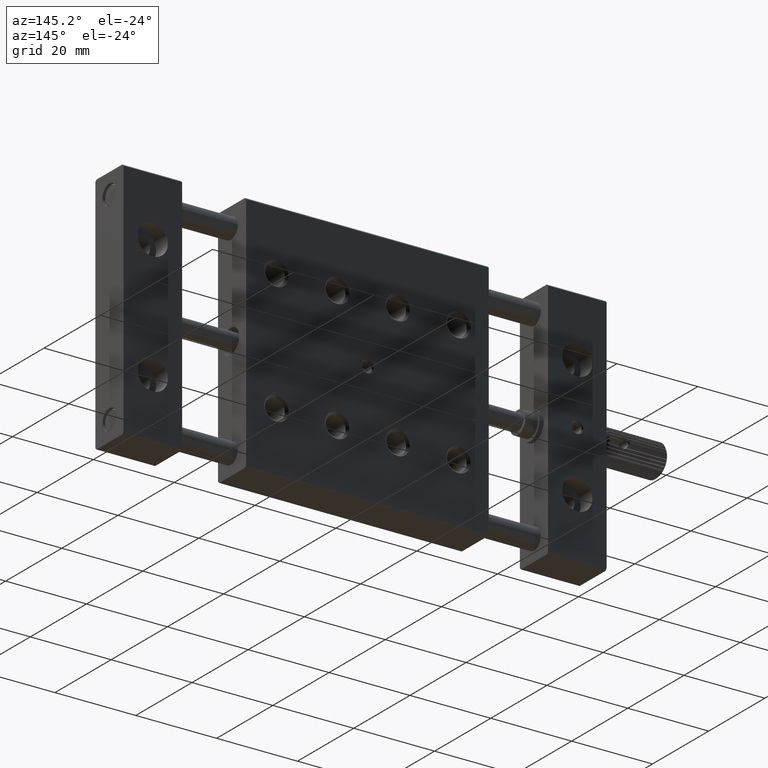
[diagram: clean part render]
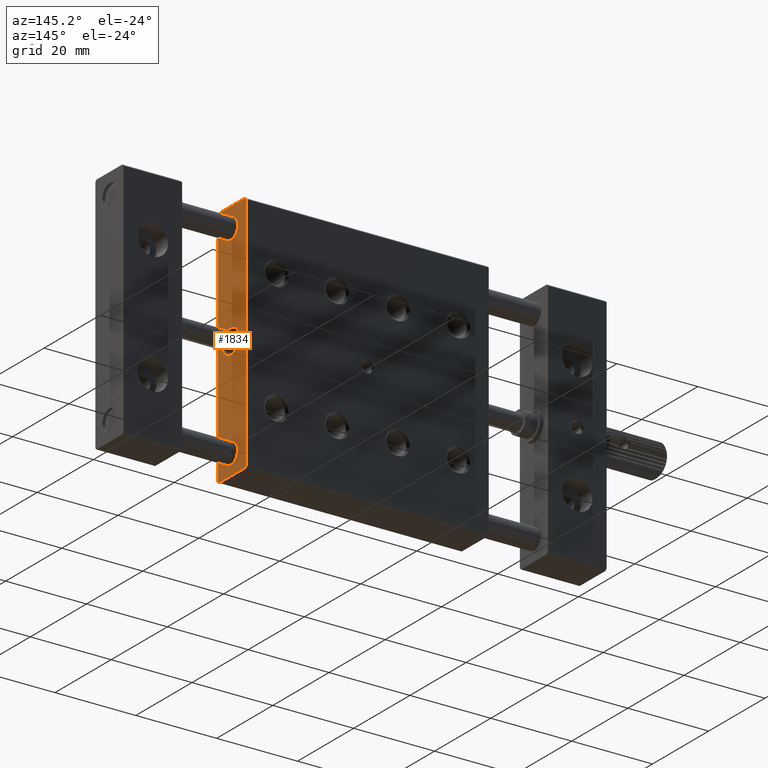
[diagram: same view with one face highlighted and labeled with its STEP entity id]
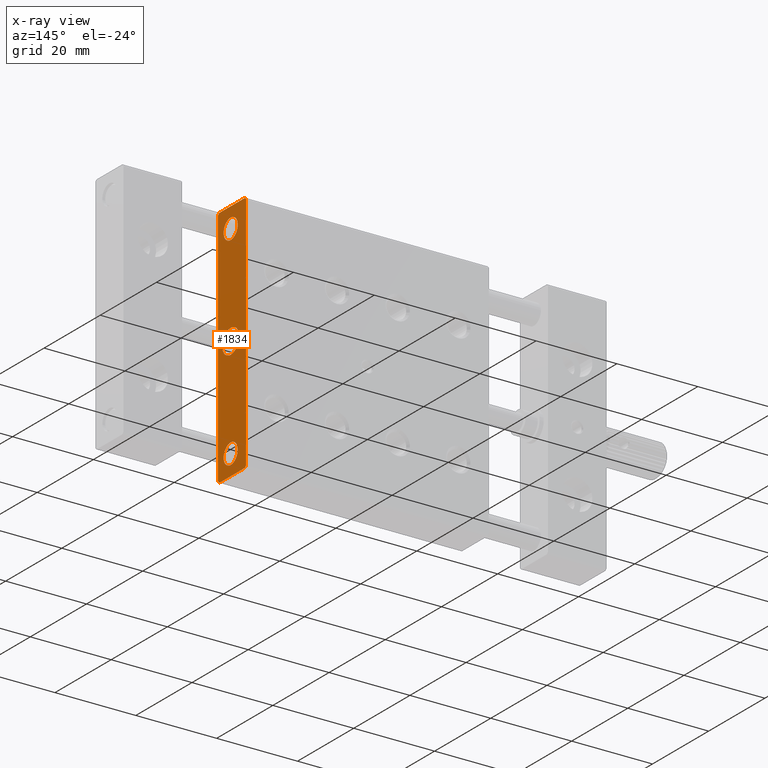
[diagram: x-ray of the same camera — body ghosted, the highlighted face saturated]
A machine part, auxiliary view. The second image highlights one B-rep face of the part: STEP entity #1834.
The next image is the same camera in x-ray: the body ghosted, the highlighted face saturated — about 0% of this face is hidden behind the body in this view.
In plain terms, the highlighted planar face has unit normal (1, 0, 0).
Its self-contained STEP definition (entity closure, byte-faithful):
#23 = CARTESIAN_POINT ( 'NONE',  ( 89.50000000000000000, 5.000000000000000888, -52.50000000000000000 ) ) ;
#84 = FACE_OUTER_BOUND ( 'NONE', #6674, .T. ) ;
#154 = CARTESIAN_POINT ( 'NONE',  ( 89.50000000000000000, 5.000000000000000888, -2.500000000000000000 ) ) ;
#246 = VECTOR ( 'NONE', #496, 1000.000000000000000 ) ;
#258 = EDGE_CURVE ( 'NONE', #1700, #7721, #4823, .T. ) ;
#496 = DIRECTION ( 'NONE',  ( -0.000000000000000000, 0.000000000000000000, -1.000000000000000000 ) ) ;
#563 = DIRECTION ( 'NONE',  ( -0.000000000000000000, 1.000000000000000000, 0.000000000000000000 ) ) ;
#612 = FACE_BOUND ( 'NONE', #4403, .T. ) ;
#765 = ORIENTED_EDGE ( 'NONE', *, *, #2487, .T. ) ;
#804 = DIRECTION ( 'NONE',  ( 0.000000000000000000, 0.000000000000000000, 1.000000000000000000 ) ) ;
#831 = DIRECTION ( 'NONE',  ( -0.000000000000000000, 0.7071067811865531239, 0.7071067811865420216 ) ) ;
#868 = VECTOR ( 'NONE', #563, 1000.000000000000000 ) ;
#871 = DIRECTION ( 'NONE',  ( 0.000000000000000000, -1.000000000000000000, -0.000000000000000000 ) ) ;
#930 = AXIS2_PLACEMENT_3D ( 'NONE', #7467, #2780, #1326 ) ;
#1067 = CARTESIAN_POINT ( 'NONE',  ( 89.50000000000000000, 0.9100000000000000311, -60.00000000000000000 ) ) ;
#1326 = DIRECTION ( 'NONE',  ( 0.000000000000000000, 0.000000000000000000, -1.000000000000000000 ) ) ;
#1368 = CARTESIAN_POINT ( 'NONE',  ( 89.50000000000000000, 10.08999999999999986, -60.00000000000000000 ) ) ;
#1468 = CARTESIAN_POINT ( 'NONE',  ( 89.50000000000000000, 10.08999999999999986, -60.00000000000000000 ) ) ;
#1700 = VERTEX_POINT ( 'NONE', #8524 ) ;
#1708 = CIRCLE ( 'NONE', #3954, 2.999999999999999112 ) ;
#1767 = DIRECTION ( 'NONE',  ( 0.000000000000000000, 0.000000000000000000, 1.000000000000000000 ) ) ;
#1776 = ORIENTED_EDGE ( 'NONE', *, *, #5650, .T. ) ;
#1809 = CARTESIAN_POINT ( 'NONE',  ( 89.50000000000000000, 5.000000000000000888, -30.00000000000000000 ) ) ;
#1819 = EDGE_LOOP ( 'NONE', ( #6110 ) ) ;
#1834 = ADVANCED_FACE ( 'NONE', ( #84, #6846, #612, #8756 ), #8081, .T. ) ;
#1884 = VERTEX_POINT ( 'NONE', #23 ) ;
#2092 = CARTESIAN_POINT ( 'NONE',  ( 89.50000000000000000, 5.000000000000000888, -5.000000000000000000 ) ) ;
#2104 = AXIS2_PLACEMENT_3D ( 'NONE', #2092, #6197, #804 ) ;
#2328 = LINE ( 'NONE', #3599, #8570 ) ;
#2487 = EDGE_CURVE ( 'NONE', #1884, #1884, #8704, .T. ) ;
#2780 = DIRECTION ( 'NONE',  ( 1.000000000000000000, 0.000000000000000000, 0.000000000000000000 ) ) ;
#2809 = VERTEX_POINT ( 'NONE', #154 ) ;
#2877 = VERTEX_POINT ( 'NONE', #6946 ) ;
#2896 = CARTESIAN_POINT ( 'NONE',  ( 89.50000000000000000, 0.4999999999999997780, -0.4099999999999998646 ) ) ;
#2978 = CARTESIAN_POINT ( 'NONE',  ( 89.50000000000000000, 5.000000000000000888, -27.00000000000000000 ) ) ;
#3133 = VERTEX_POINT ( 'NONE', #1468 ) ;
#3135 = VERTEX_POINT ( 'NONE', #3482 ) ;
#3456 = EDGE_CURVE ( 'NONE', #7721, #3135, #3473, .T. ) ;
#3473 = LINE ( 'NONE', #4617, #7158 ) ;
#3482 = CARTESIAN_POINT ( 'NONE',  ( 89.50000000000000000, 10.09000000000000163, -2.710505431213761085E-16 ) ) ;
#3518 = CARTESIAN_POINT ( 'NONE',  ( 89.50000000000000000, 0.5000000000000000000, -0.4099999999999999756 ) ) ;
#3599 = CARTESIAN_POINT ( 'NONE',  ( 89.50000000000000000, 0.5000000000000000000, 5.421010862427519705E-17 ) ) ;
#3639 = EDGE_CURVE ( 'NONE', #3135, #5281, #2328, .T. ) ;
#3678 = VERTEX_POINT ( 'NONE', #2896 ) ;
#3698 = ORIENTED_EDGE ( 'NONE', *, *, #3745, .T. ) ;
#3722 = DIRECTION ( 'NONE',  ( 0.000000000000000000, 0.000000000000000000, 1.000000000000000000 ) ) ;
#3745 = EDGE_CURVE ( 'NONE', #3678, #2877, #7538, .T. ) ;
#3849 = EDGE_CURVE ( 'NONE', #5281, #3678, #4789, .T. ) ;
#3910 = LINE ( 'NONE', #4759, #868 ) ;
#3954 = AXIS2_PLACEMENT_3D ( 'NONE', #1809, #5248, #1767 ) ;
#4386 = VERTEX_POINT ( 'NONE', #2978 ) ;
#4403 = EDGE_LOOP ( 'NONE', ( #7064 ) ) ;
#4515 = EDGE_CURVE ( 'NONE', #2809, #2809, #5048, .T. ) ;
#4537 = ORIENTED_EDGE ( 'NONE', *, *, #5396, .T. ) ;
#4569 = LINE ( 'NONE', #7837, #8737 ) ;
#4617 = CARTESIAN_POINT ( 'NONE',  ( 89.50000000000000000, 10.50000000000000000, -0.4099999999999970335 ) ) ;
#4710 = ORIENTED_EDGE ( 'NONE', *, *, #8463, .T. ) ;
#4732 = CARTESIAN_POINT ( 'NONE',  ( 89.50000000000000000, 10.50000000000000000, 0.000000000000000000 ) ) ;
#4759 = CARTESIAN_POINT ( 'NONE',  ( 89.50000000000000000, 0.5000000000000000000, -60.00000000000000000 ) ) ;
#4789 = LINE ( 'NONE', #5941, #8296 ) ;
#4823 = LINE ( 'NONE', #4732, #7389 ) ;
#4879 = AXIS2_PLACEMENT_3D ( 'NONE', #5847, #7047, #3722 ) ;
#5048 = CIRCLE ( 'NONE', #2104, 2.500000000000000000 ) ;
#5248 = DIRECTION ( 'NONE',  ( -1.000000000000000000, 0.000000000000000000, 0.000000000000000000 ) ) ;
#5281 = VERTEX_POINT ( 'NONE', #8166 ) ;
#5372 = DIRECTION ( 'NONE',  ( -0.000000000000000000, -0.7071067811865510144, 0.7071067811865441310 ) ) ;
#5396 = EDGE_CURVE ( 'NONE', #3133, #1700, #8077, .T. ) ;
#5650 = EDGE_CURVE ( 'NONE', #2877, #7555, #4569, .T. ) ;
#5779 = ORIENTED_EDGE ( 'NONE', *, *, #3456, .T. ) ;
#5847 = CARTESIAN_POINT ( 'NONE',  ( 89.50000000000000000, 5.000000000000000888, -55.00000000000000000 ) ) ;
#5916 = VECTOR ( 'NONE', #831, 999.9999999999998863 ) ;
#5941 = CARTESIAN_POINT ( 'NONE',  ( 89.50000000000000000, 0.9100000000000000311, 0.000000000000000000 ) ) ;
#6110 = ORIENTED_EDGE ( 'NONE', *, *, #7956, .T. ) ;
#6197 = DIRECTION ( 'NONE',  ( -1.000000000000000000, 0.000000000000000000, 0.000000000000000000 ) ) ;
#6431 = ORIENTED_EDGE ( 'NONE', *, *, #3849, .T. ) ;
#6674 = EDGE_LOOP ( 'NONE', ( #7432, #5779, #7248, #6431, #3698, #1776, #4710, #4537 ) ) ;
#6691 = DIRECTION ( 'NONE',  ( 0.000000000000000000, -0.7071067811865475727, -0.7071067811865474617 ) ) ;
#6769 = CARTESIAN_POINT ( 'NONE',  ( 89.50000000000000000, 10.49999999999999822, -0.4099999999999945910 ) ) ;
#6846 = FACE_BOUND ( 'NONE', #1819, .T. ) ;
#6946 = CARTESIAN_POINT ( 'NONE',  ( 89.50000000000000000, 0.5000000000000026645, -59.59000000000001052 ) ) ;
#7047 = DIRECTION ( 'NONE',  ( -1.000000000000000000, 0.000000000000000000, 0.000000000000000000 ) ) ;
#7064 = ORIENTED_EDGE ( 'NONE', *, *, #4515, .T. ) ;
#7158 = VECTOR ( 'NONE', #5372, 999.9999999999998863 ) ;
#7183 = DIRECTION ( 'NONE',  ( -0.000000000000000000, 0.7071067811865531239, -0.7071067811865420216 ) ) ;
#7248 = ORIENTED_EDGE ( 'NONE', *, *, #3639, .T. ) ;
#7389 = VECTOR ( 'NONE', #7521, 1000.000000000000000 ) ;
#7432 = ORIENTED_EDGE ( 'NONE', *, *, #258, .T. ) ;
#7467 = CARTESIAN_POINT ( 'NONE',  ( 89.50000000000000000, 0.5000000000000000000, 0.000000000000000000 ) ) ;
#7521 = DIRECTION ( 'NONE',  ( -0.000000000000000000, -0.000000000000000000, 1.000000000000000000 ) ) ;
#7538 = LINE ( 'NONE', #3518, #246 ) ;
#7555 = VERTEX_POINT ( 'NONE', #1067 ) ;
#7721 = VERTEX_POINT ( 'NONE', #6769 ) ;
#7837 = CARTESIAN_POINT ( 'NONE',  ( 89.50000000000000000, 0.5000000000000000000, -59.59000000000000341 ) ) ;
#7956 = EDGE_CURVE ( 'NONE', #4386, #4386, #1708, .T. ) ;
#8077 = LINE ( 'NONE', #1368, #5916 ) ;
#8081 = PLANE ( 'NONE',  #930 ) ;
#8166 = CARTESIAN_POINT ( 'NONE',  ( 89.50000000000000000, 0.9100000000000003642, 1.694065894508600062E-17 ) ) ;
#8296 = VECTOR ( 'NONE', #6691, 1000.000000000000000 ) ;
#8463 = EDGE_CURVE ( 'NONE', #7555, #3133, #3910, .T. ) ;
#8524 = CARTESIAN_POINT ( 'NONE',  ( 89.50000000000000000, 10.49999999999999822, -59.59000000000000341 ) ) ;
#8570 = VECTOR ( 'NONE', #871, 1000.000000000000000 ) ;
#8657 = EDGE_LOOP ( 'NONE', ( #765 ) ) ;
#8704 = CIRCLE ( 'NONE', #4879, 2.500000000000002220 ) ;
#8737 = VECTOR ( 'NONE', #7183, 999.9999999999998863 ) ;
#8756 = FACE_BOUND ( 'NONE', #8657, .T. ) ;